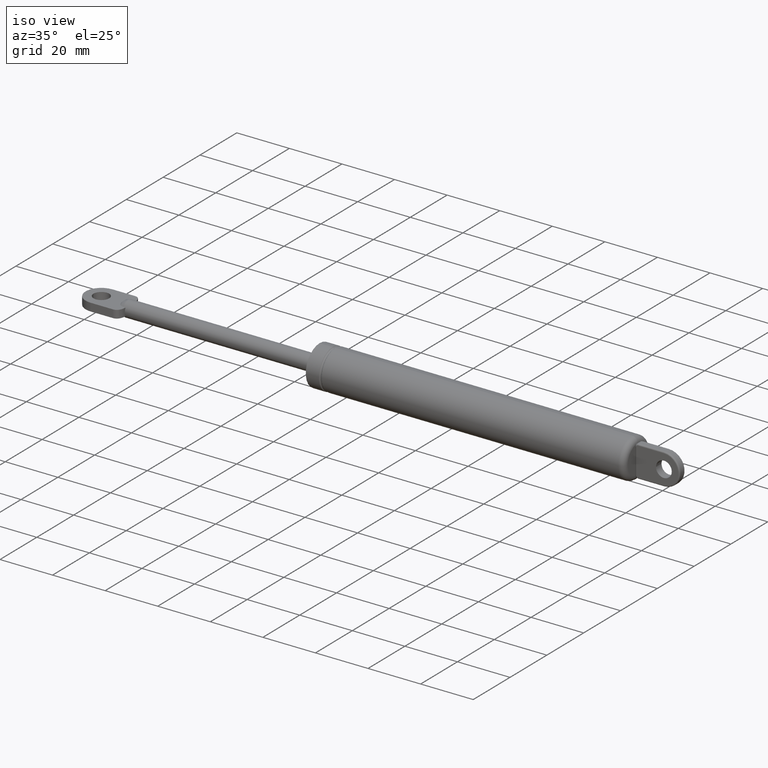
[diagram: clean part render]
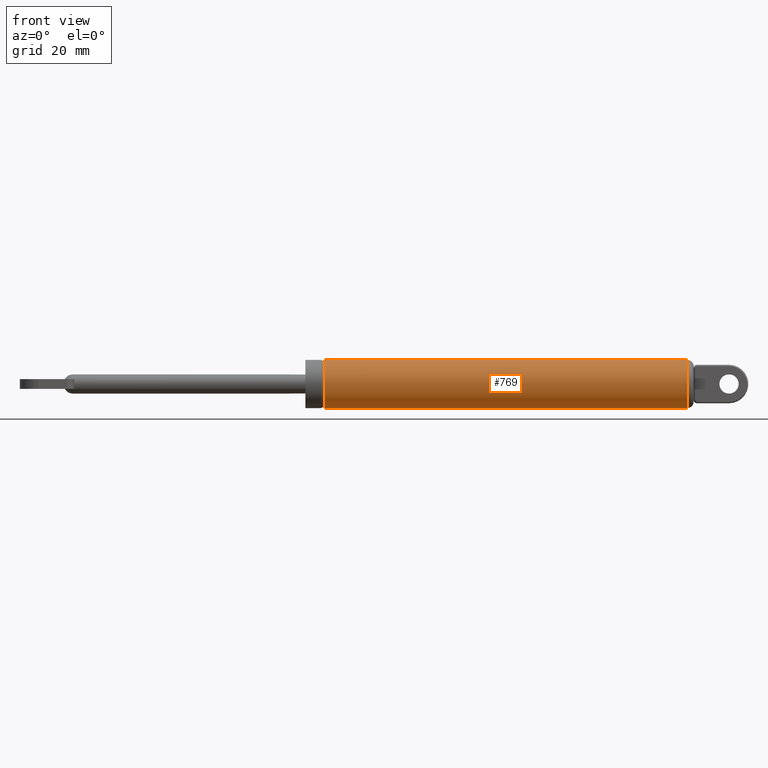
[diagram: tour spotlight — one face highlighted and labeled with its STEP entity id]
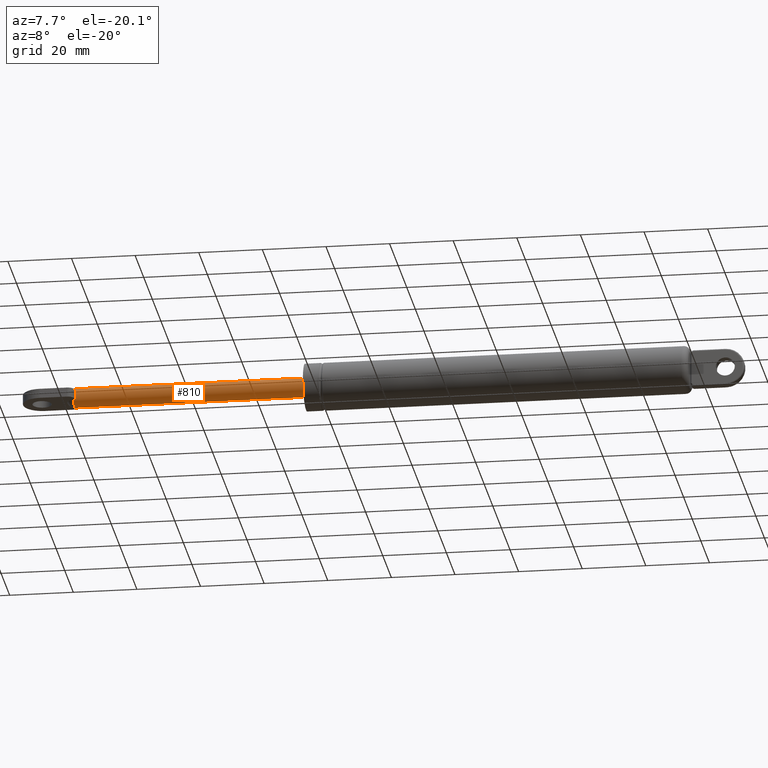
[diagram: tour spotlight — one face highlighted and labeled with its STEP entity id]
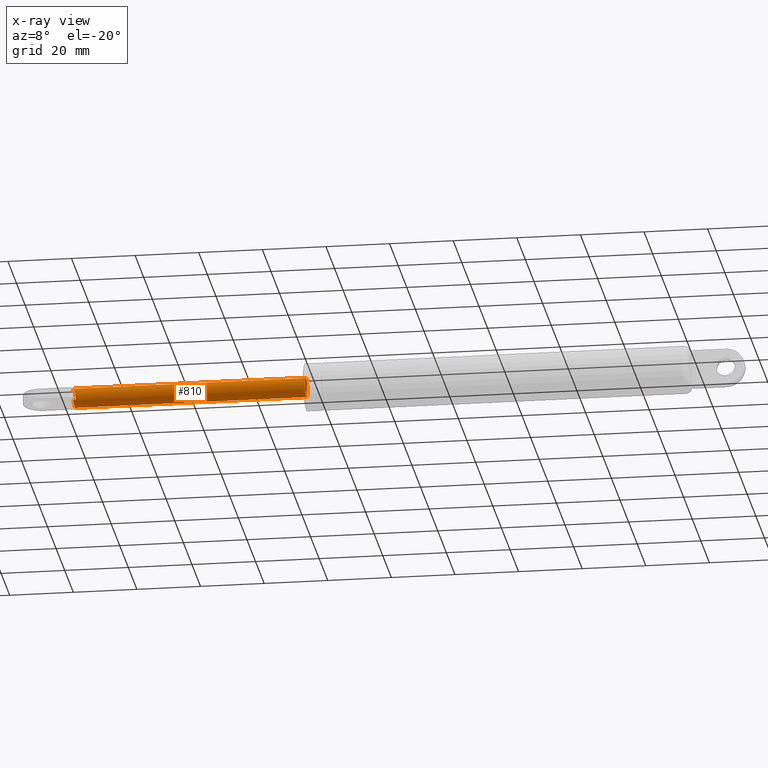
[diagram: x-ray of the same camera — body ghosted, this tour face saturated]
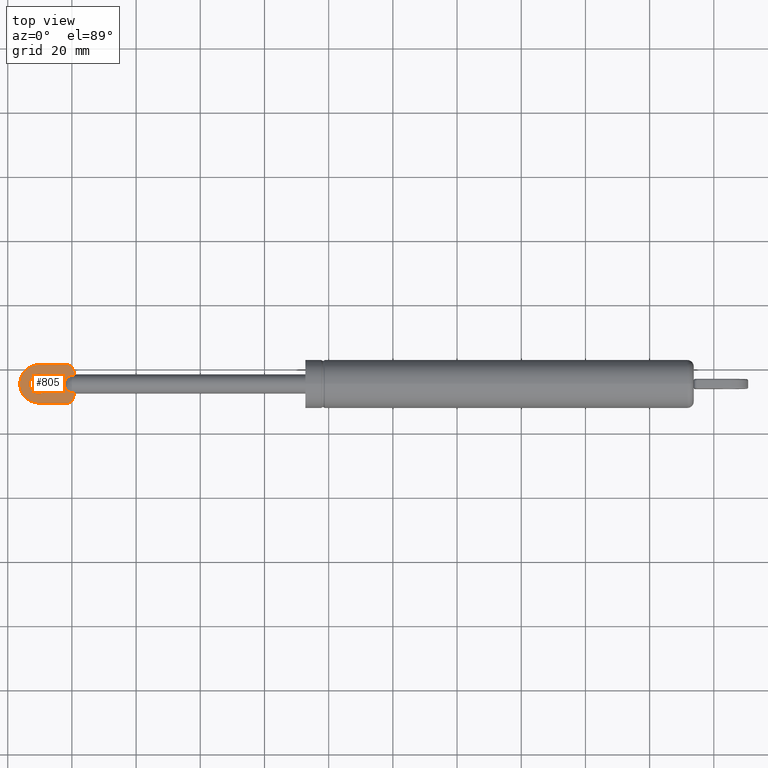
[diagram: tour spotlight — one face highlighted and labeled with its STEP entity id]
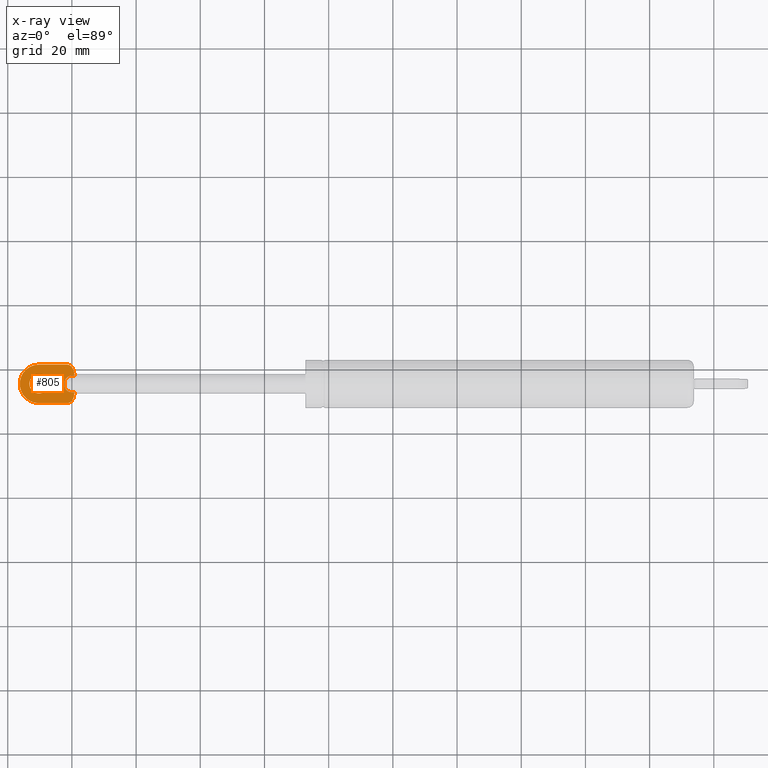
[diagram: x-ray of the same camera — body ghosted, this tour face saturated]
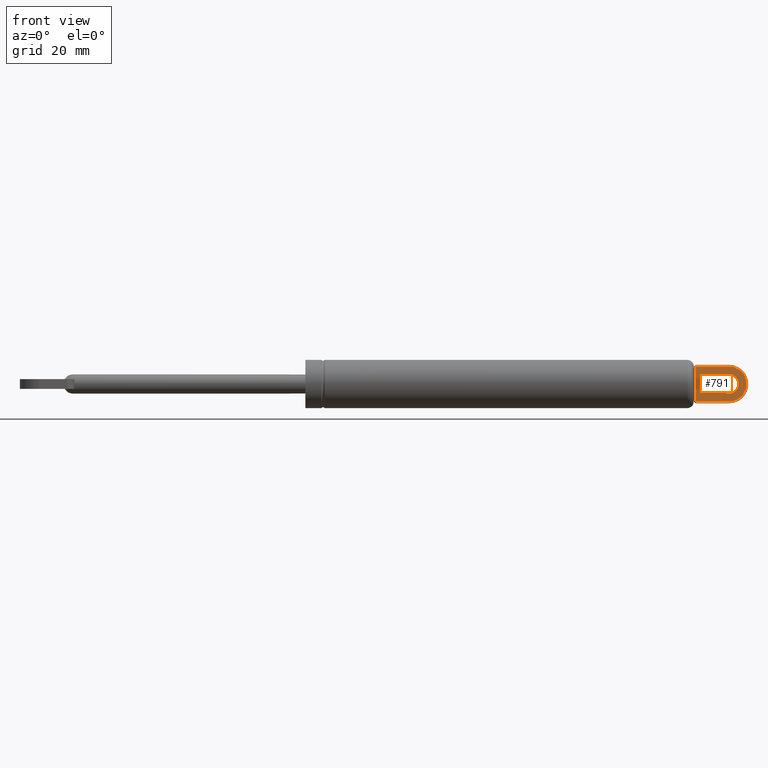
[diagram: tour spotlight — one face highlighted and labeled with its STEP entity id]
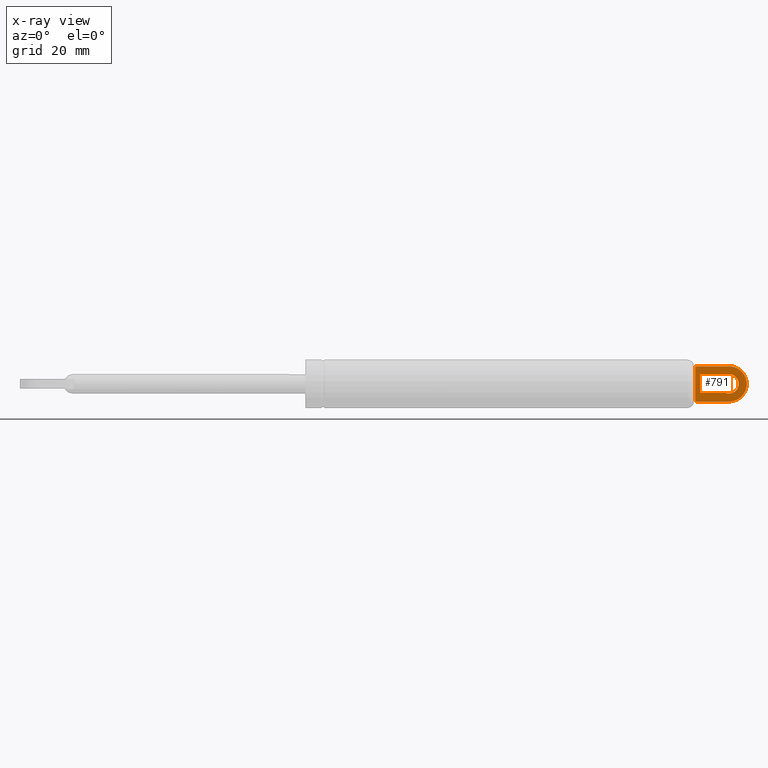
[diagram: x-ray of the same camera — body ghosted, this tour face saturated]
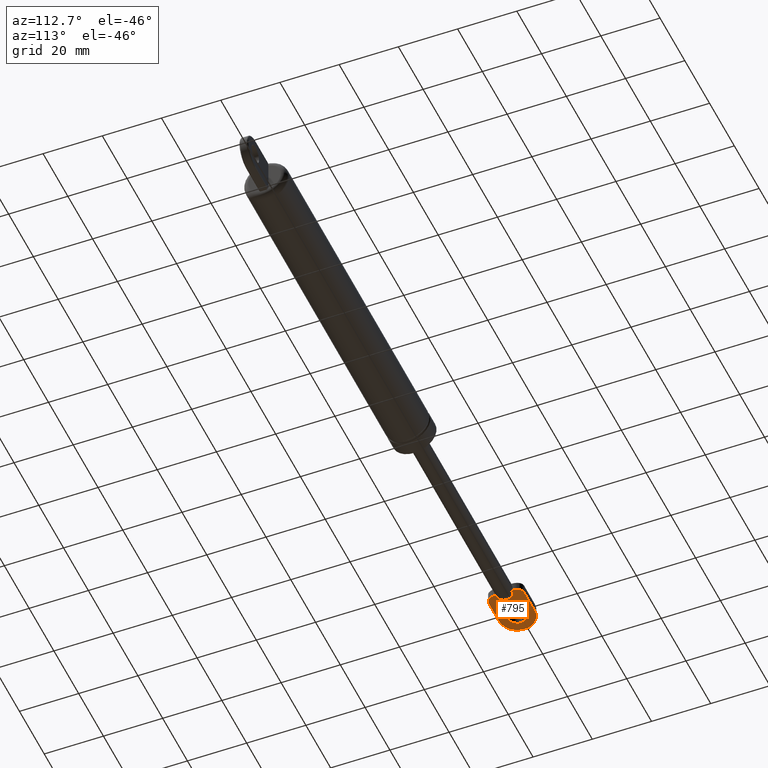
[diagram: tour spotlight — one face highlighted and labeled with its STEP entity id]
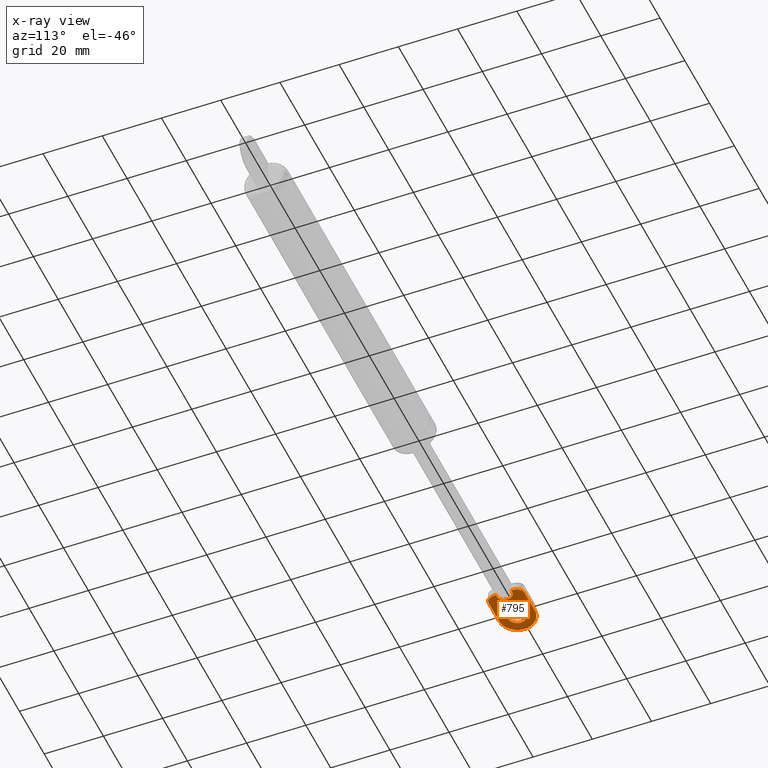
[diagram: x-ray of the same camera — body ghosted, this tour face saturated]
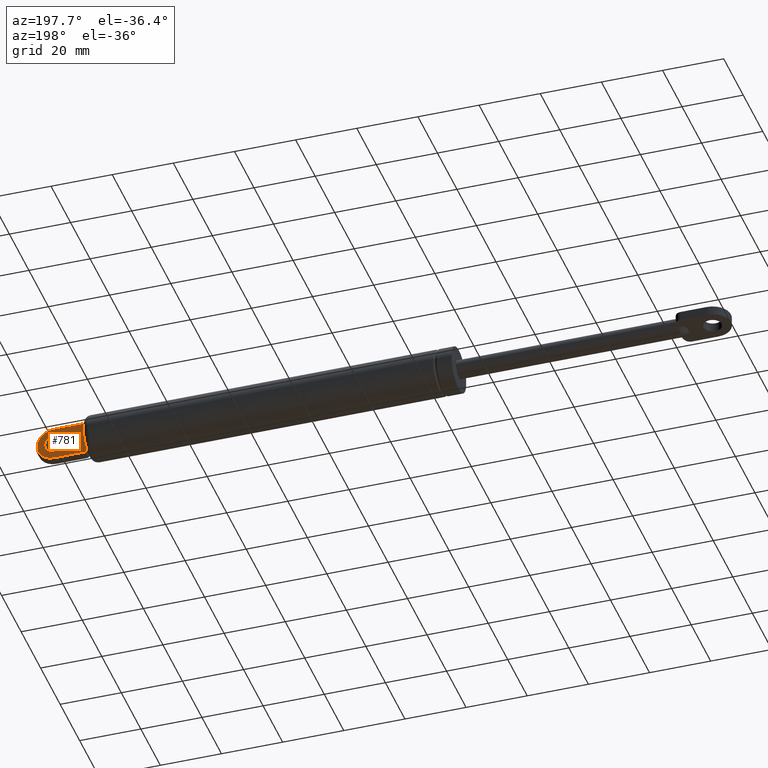
[diagram: tour spotlight — one face highlighted and labeled with its STEP entity id]
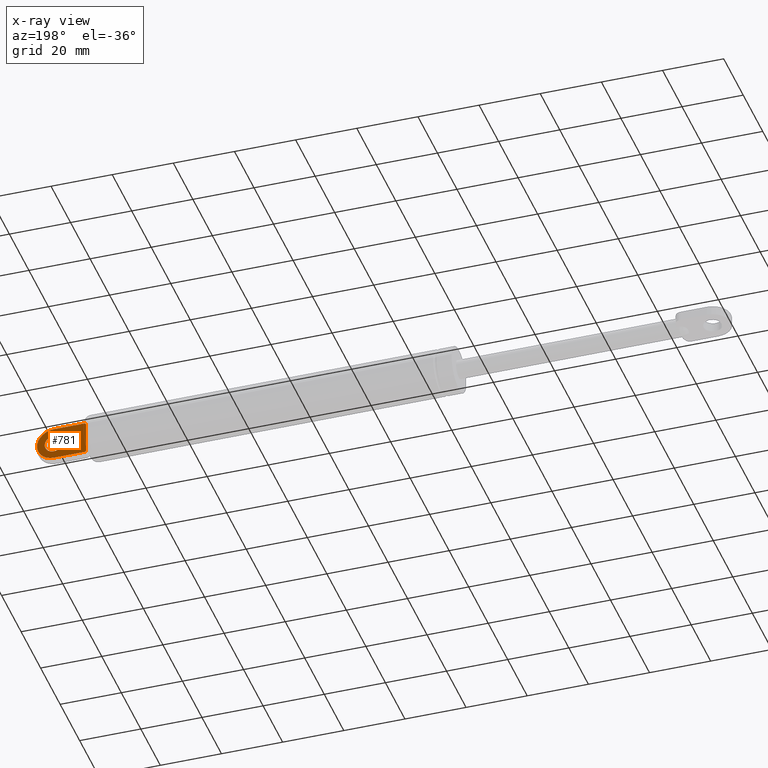
[diagram: x-ray of the same camera — body ghosted, this tour face saturated]
A machine part: a face-by-face anatomy tour. The part has 53 B-rep faces; the first image is the clean iso view, then the 6 largest visible faces are spotlighted one at a time (largest first), each with its STEP entity span.

Face 1 — front view, entity #769. In plain terms, the highlighted cylindrical surface (bore or boss wall) has radius 7.5 mm, axis along (-1, 0, 0).
Definition (entity closure, byte-faithful):
#160=FACE_BOUND('',#244,.T.);
#181=FACE_OUTER_BOUND('',#243,.T.);
#243=EDGE_LOOP('',(#547));
#244=EDGE_LOOP('',(#548));
#301=CIRCLE('',#828,7.50000000000001);
#306=CIRCLE('',#836,7.50000000000001);
#357=VERTEX_POINT('',#1200);
#362=VERTEX_POINT('',#1213);
#429=EDGE_CURVE('',#357,#357,#301,.T.);
#434=EDGE_CURVE('',#362,#362,#306,.T.);
#547=ORIENTED_EDGE('',*,*,#429,.F.);
#548=ORIENTED_EDGE('',*,*,#434,.F.);
#739=CYLINDRICAL_SURFACE('',#838,7.50000000000001);
#769=ADVANCED_FACE('',(#181,#160),#739,.T.);
#828=AXIS2_PLACEMENT_3D('',#1201,#950,#951);
#836=AXIS2_PLACEMENT_3D('',#1214,#966,#967);
#838=AXIS2_PLACEMENT_3D('',#1216,#970,#971);
#950=DIRECTION('center_axis',(-1.,0.,1.23867858119336E-16));
#951=DIRECTION('ref_axis',(1.23867858119336E-16,0.,1.));
#966=DIRECTION('center_axis',(1.,0.,-1.23867858119336E-16));
#967=DIRECTION('ref_axis',(-1.11022302462516E-16,1.22464679914735E-16,-1.));
#970=DIRECTION('center_axis',(-1.,0.,1.23867858119336E-16));
#971=DIRECTION('ref_axis',(1.23867858119336E-16,0.,1.));
#1200=CARTESIAN_POINT('',(5.99999999999999,1.77771309553649E-15,-7.50000000000002));
#1201=CARTESIAN_POINT('Origin',(6.,0.,-7.43207148716013E-16));
#1213=CARTESIAN_POINT('',(119.,-1.83697019872103E-15,7.49999999999999));
#1214=CARTESIAN_POINT('Origin',(119.,0.,-1.47402751162009E-14));
#1216=CARTESIAN_POINT('Origin',(63.5,0.,-7.86560899057781E-15));

Face 2 — auxiliary view, entity #810. An x-ray twin of the same camera follows (body ghosted, this face saturated) — the face is partly hidden behind the body. In plain terms, the highlighted cylindrical surface (bore or boss wall) has radius 3 mm, axis along (-1, -0, 0).
Definition (entity closure, byte-faithful):
#23=B_SPLINE_CURVE_WITH_KNOTS('',3,(#1523,#1524,#1525,#1526,#1527,#1528,
#1529,#1530),.UNSPECIFIED.,.F.,.F.,(4,1,1,1,1,4),(-0.0540383581335251,-0.0363649636453357,
-0.0121182107978899,0.0121285420495559,0.0363752948970017,0.0540963857121514),
 .UNSPECIFIED.);
#25=B_SPLINE_CURVE_WITH_KNOTS('',3,(#1668,#1669,#1670,#1671,#1672,#1673,
#1674,#1675),.UNSPECIFIED.,.F.,.F.,(4,1,1,1,1,4),(-0.0540339774453801,-0.0363721574594421,
-0.0121290015190495,0.0121141544213431,0.0363573103617357,0.054041807362439),
 .UNSPECIFIED.);
#56=LINE('',#1376,#98);
#58=LINE('',#1410,#100);
#69=LINE('',#1698,#111);
#70=LINE('',#1699,#112);
#98=VECTOR('',#1111,0.8349364905389);
#100=VECTOR('',#1113,0.8349364905389);
#111=VECTOR('',#1154,0.8349364905389);
#112=VECTOR('',#1155,0.834936490538905);
#169=FACE_BOUND('',#294,.T.);
#222=FACE_OUTER_BOUND('',#293,.T.);
#293=EDGE_LOOP('',(#724,#725,#726,#727,#728,#729,#730,#731,#732,#733));
#294=EDGE_LOOP('',(#734));
#344=CIRCLE('',#902,3.00000000000001);
#345=CIRCLE('',#904,3.00000000000001);
#346=CIRCLE('',#906,3.00000000000001);
#349=CIRCLE('',#915,3.00000000000001);
#350=CIRCLE('',#917,3.);
#395=VERTEX_POINT('',#1357);
#402=VERTEX_POINT('',#1373);
#403=VERTEX_POINT('',#1375);
#406=VERTEX_POINT('',#1394);
#407=VERTEX_POINT('',#1409);
#412=VERTEX_POINT('',#1423);
#413=VERTEX_POINT('',#1427);
#416=VERTEX_POINT('',#1652);
#417=VERTEX_POINT('',#1667);
#420=VERTEX_POINT('',#1696);
#422=VERTEX_POINT('',#1709);
#494=EDGE_CURVE('',#402,#403,#56,.T.);
#498=EDGE_CURVE('',#406,#407,#58,.T.);
#508=EDGE_CURVE('',#413,#412,#344,.T.);
#509=EDGE_CURVE('',#412,#402,#345,.T.);
#510=EDGE_CURVE('',#407,#395,#346,.T.);
#513=EDGE_CURVE('',#403,#406,#23,.T.);
#515=EDGE_CURVE('',#416,#417,#25,.T.);
#520=EDGE_CURVE('',#420,#416,#69,.T.);
#521=EDGE_CURVE('',#417,#413,#70,.T.);
#525=EDGE_CURVE('',#395,#420,#349,.T.);
#526=EDGE_CURVE('',#422,#422,#350,.T.);
#724=ORIENTED_EDGE('',*,*,#513,.F.);
#725=ORIENTED_EDGE('',*,*,#494,.F.);
#726=ORIENTED_EDGE('',*,*,#509,.F.);
#727=ORIENTED_EDGE('',*,*,#508,.F.);
#728=ORIENTED_EDGE('',*,*,#521,.F.);
#729=ORIENTED_EDGE('',*,*,#515,.F.);
#730=ORIENTED_EDGE('',*,*,#520,.F.);
#731=ORIENTED_EDGE('',*,*,#525,.F.);
#732=ORIENTED_EDGE('',*,*,#510,.F.);
#733=ORIENTED_EDGE('',*,*,#498,.F.);
#734=ORIENTED_EDGE('',*,*,#526,.T.);
#757=CYLINDRICAL_SURFACE('',#918,3.);
#810=ADVANCED_FACE('',(#222,#169),#757,.T.);
#902=AXIS2_PLACEMENT_3D('',#1429,#1132,#1133);
#904=AXIS2_PLACEMENT_3D('',#1431,#1136,#1137);
#906=AXIS2_PLACEMENT_3D('',#1433,#1140,#1141);
#915=AXIS2_PLACEMENT_3D('',#1707,#1166,#1167);
#917=AXIS2_PLACEMENT_3D('',#1710,#1170,#1171);
#918=AXIS2_PLACEMENT_3D('',#1711,#1172,#1173);
#1111=DIRECTION('',(-1.,0.,0.));
#1113=DIRECTION('',(1.,0.,0.));
#1132=DIRECTION('center_axis',(-1.,0.,0.));
#1133=DIRECTION('ref_axis',(0.,0.,1.));
#1136=DIRECTION('center_axis',(-1.,0.,0.));
#1137=DIRECTION('ref_axis',(0.,0.,1.));
#1140=DIRECTION('center_axis',(-1.,0.,0.));
#1141=DIRECTION('ref_axis',(0.,0.,1.));
#1154=DIRECTION('',(-1.,0.,0.));
#1155=DIRECTION('',(1.,0.,0.));
#1166=DIRECTION('center_axis',(-1.,0.,0.));
#1167=DIRECTION('ref_axis',(0.,0.,1.));
#1170=DIRECTION('center_axis',(-1.,0.,0.));
#1171=DIRECTION('ref_axis',(0.,0.,1.));
#1172=DIRECTION('center_axis',(-1.,0.,0.));
#1173=DIRECTION('ref_axis',(0.,0.,1.));
#1357=CARTESIAN_POINT('',(0.,0.,-3.00000000000001));
#1373=CARTESIAN_POINT('',(0.,1.5,2.59807621135332));
#1375=CARTESIAN_POINT('',(-0.8349364905389,1.5,2.59807621135332));
#1376=CARTESIAN_POINT('',(0.,1.5,2.59807621135333));
#1394=CARTESIAN_POINT('',(-0.8349364905389,1.50000000000002,-2.59807621135331));
#1409=CARTESIAN_POINT('',(0.,1.5,-2.59807621135332));
#1410=CARTESIAN_POINT('',(0.,1.5,-2.59807621135333));
#1423=CARTESIAN_POINT('',(0.,0.,3.00000000000001));
#1427=CARTESIAN_POINT('',(0.,-1.5,2.59807621135332));
#1429=CARTESIAN_POINT('Origin',(0.,0.,0.));
#1431=CARTESIAN_POINT('Origin',(0.,0.,0.));
#1433=CARTESIAN_POINT('Origin',(0.,0.,0.));
#1523=CARTESIAN_POINT('Ctrl Pts',(-0.83496296909703,1.49982526992711,2.59776931909322));
#1524=CARTESIAN_POINT('Ctrl Pts',(-0.808481457728395,1.77548765390264,2.43853525479534));
#1525=CARTESIAN_POINT('Ctrl Pts',(-0.753930736047391,2.39110760546371,1.94575758727613));
#1526=CARTESIAN_POINT('Ctrl Pts',(-0.70651358265062,3.02917642674684,0.75766980171822));
#1527=CARTESIAN_POINT('Ctrl Pts',(-0.706540066146331,3.02867178525314,-0.755668449945182));
#1528=CARTESIAN_POINT('Ctrl Pts',(-0.753569712255887,2.39442029901889,-1.9423550495411));
#1529=CARTESIAN_POINT('Ctrl Pts',(-0.80836277386856,1.77665333904333,-2.43775292165401));
#1530=CARTESIAN_POINT('Ctrl Pts',(-0.834959397544464,1.49986326182888,-2.5978359756072));
#1652=CARTESIAN_POINT('',(-0.8349364905389,-1.5,-2.59807621135332));
#1667=CARTESIAN_POINT('',(-0.834936490538905,-1.5,2.59807621135332));
#1668=CARTESIAN_POINT('Ctrl Pts',(-0.834963193699952,-1.49989092503882,
-2.59788284931041));
#1669=CARTESIAN_POINT('Ctrl Pts',(-0.808497956849982,-1.77523297517459,
-2.43890837609691));
#1670=CARTESIAN_POINT('Ctrl Pts',(-0.753908067428951,-2.3904867172505,-1.94672799018682));
#1671=CARTESIAN_POINT('Ctrl Pts',(-0.706628477442196,-3.02673005416493,
-0.759171410230855));
#1672=CARTESIAN_POINT('Ctrl Pts',(-0.706499083681106,-3.0296097004443,0.757073935760143));
#1673=CARTESIAN_POINT('Ctrl Pts',(-0.754003123055967,-2.38947846264433,
1.94631723191615));
#1674=CARTESIAN_POINT('Ctrl Pts',(-0.808481652627919,-1.77536711114341,
2.43866991494797));
#1675=CARTESIAN_POINT('Ctrl Pts',(-0.834964863882417,-1.49986674167264,
2.59784084088317));
#1696=CARTESIAN_POINT('',(0.,-1.5,-2.59807621135332));
#1698=CARTESIAN_POINT('',(0.,-1.5,-2.59807621135333));
#1699=CARTESIAN_POINT('',(0.,-1.5,2.59807621135333));
#1707=CARTESIAN_POINT('Origin',(0.,0.,0.));
#1709=CARTESIAN_POINT('',(72.,0.,3.));
#1710=CARTESIAN_POINT('Origin',(72.,0.,0.));
#1711=CARTESIAN_POINT('Origin',(36.,0.,0.));

Face 3 — top view, entity #805. An x-ray twin of the same camera follows (body ghosted, this face saturated) — the face is partly hidden behind the body. In plain terms, the highlighted planar face has unit normal (0, -0, 1).
Definition (entity closure, byte-faithful):
#24=B_SPLINE_CURVE_WITH_KNOTS('',3,(#1653,#1654,#1655,#1656,#1657,#1658,
#1659,#1660,#1661,#1662,#1663,#1664,#1665,#1666),.UNSPECIFIED.,.F.,.F.,
(4,2,2,2,2,2,4),(0.,0.0882895990108513,0.174187522949891,0.251913736880269,
0.292694329658104,0.33534186839813,0.336083167071855),.UNSPECIFIED.);
#26=B_SPLINE_CURVE_WITH_KNOTS('',3,(#1677,#1678,#1679,#1680,#1681,#1682,
#1683,#1684,#1685,#1686,#1687,#1688,#1689,#1690),.UNSPECIFIED.,.F.,.F.,
(4,2,2,2,2,2,4),(-0.000739769988527966,0.,0.042554424329177,0.0832484773917246,
0.160809137241158,0.246522977485883,0.334623190007731),.UNSPECIFIED.);
#64=LINE('',#1428,#106);
#65=LINE('',#1436,#107);
#67=LINE('',#1691,#109);
#68=LINE('',#1697,#110);
#69=LINE('',#1698,#111);
#70=LINE('',#1699,#112);
#71=LINE('',#1701,#113);
#106=VECTOR('',#1131,0.401923788646689);
#107=VECTOR('',#1144,8.68614066163451);
#109=VECTOR('',#1146,1.00000000000001);
#110=VECTOR('',#1153,0.401923788646688);
#111=VECTOR('',#1154,0.8349364905389);
#112=VECTOR('',#1155,0.834936490538905);
#113=VECTOR('',#1156,8.68614066163451);
#140=PLANE('',#910);
#168=FACE_BOUND('',#288,.T.);
#217=FACE_OUTER_BOUND('',#287,.T.);
#287=EDGE_LOOP('',(#697,#698,#699,#700,#701,#702,#703,#704,#705,#706,#707,
#708,#709,#710));
#288=EDGE_LOOP('',(#711));
#334=CIRCLE('',#887,2.);
#337=CIRCLE('',#891,3.74999999999998);
#342=CIRCLE('',#898,2.);
#343=CIRCLE('',#900,3.74999999999999);
#347=CIRCLE('',#909,3.);
#348=CIRCLE('',#911,6.);
#390=VERTEX_POINT('',#1346);
#391=VERTEX_POINT('',#1347);
#396=VERTEX_POINT('',#1359);
#409=VERTEX_POINT('',#1415);
#410=VERTEX_POINT('',#1417);
#411=VERTEX_POINT('',#1421);
#413=VERTEX_POINT('',#1427);
#414=VERTEX_POINT('',#1435);
#415=VERTEX_POINT('',#1651);
#416=VERTEX_POINT('',#1652);
#417=VERTEX_POINT('',#1667);
#418=VERTEX_POINT('',#1676);
#419=VERTEX_POINT('',#1693);
#420=VERTEX_POINT('',#1696);
#421=VERTEX_POINT('',#1700);
#480=EDGE_CURVE('',#390,#391,#334,.T.);
#487=EDGE_CURVE('',#390,#396,#337,.T.);
#502=EDGE_CURVE('',#409,#410,#342,.T.);
#504=EDGE_CURVE('',#411,#410,#343,.T.);
#507=EDGE_CURVE('',#413,#411,#64,.T.);
#511=EDGE_CURVE('',#414,#391,#65,.T.);
#514=EDGE_CURVE('',#415,#416,#24,.F.);
#516=EDGE_CURVE('',#418,#417,#26,.T.);
#517=EDGE_CURVE('',#415,#418,#67,.T.);
#518=EDGE_CURVE('',#419,#419,#347,.T.);
#519=EDGE_CURVE('',#396,#420,#68,.T.);
#520=EDGE_CURVE('',#420,#416,#69,.T.);
#521=EDGE_CURVE('',#417,#413,#70,.T.);
#522=EDGE_CURVE('',#409,#421,#71,.T.);
#523=EDGE_CURVE('',#421,#414,#348,.T.);
#697=ORIENTED_EDGE('',*,*,#480,.F.);
#698=ORIENTED_EDGE('',*,*,#487,.T.);
#699=ORIENTED_EDGE('',*,*,#519,.T.);
#700=ORIENTED_EDGE('',*,*,#520,.T.);
#701=ORIENTED_EDGE('',*,*,#514,.F.);
#702=ORIENTED_EDGE('',*,*,#517,.T.);
#703=ORIENTED_EDGE('',*,*,#516,.T.);
#704=ORIENTED_EDGE('',*,*,#521,.T.);
#705=ORIENTED_EDGE('',*,*,#507,.T.);
#706=ORIENTED_EDGE('',*,*,#504,.T.);
#707=ORIENTED_EDGE('',*,*,#502,.F.);
#708=ORIENTED_EDGE('',*,*,#522,.T.);
#709=ORIENTED_EDGE('',*,*,#523,.T.);
#710=ORIENTED_EDGE('',*,*,#511,.T.);
#711=ORIENTED_EDGE('',*,*,#518,.T.);
#805=ADVANCED_FACE('',(#217,#168),#140,.T.);
#887=AXIS2_PLACEMENT_3D('',#1348,#1086,#1087);
#891=AXIS2_PLACEMENT_3D('',#1361,#1098,#1099);
#898=AXIS2_PLACEMENT_3D('',#1418,#1120,#1121);
#900=AXIS2_PLACEMENT_3D('',#1422,#1125,#1126);
#909=AXIS2_PLACEMENT_3D('',#1694,#1149,#1150);
#910=AXIS2_PLACEMENT_3D('',#1695,#1151,#1152);
#911=AXIS2_PLACEMENT_3D('',#1702,#1157,#1158);
#1086=DIRECTION('center_axis',(-7.40148683083438E-17,1.,0.));
#1087=DIRECTION('ref_axis',(0.462910049886275,0.,-0.886405260427919));
#1098=DIRECTION('center_axis',(7.40148683083438E-17,-1.,0.));
#1099=DIRECTION('ref_axis',(-1.,0.,1.48029736616688E-16));
#1120=DIRECTION('center_axis',(-7.40148683083438E-17,1.,0.));
#1121=DIRECTION('ref_axis',(0.462910049886275,0.,0.886405260427919));
#1125=DIRECTION('center_axis',(7.40148683083438E-17,-1.,0.));
#1126=DIRECTION('ref_axis',(-0.599999999999998,0.,-0.800000000000001));
#1131=DIRECTION('',(0.,0.,1.));
#1144=DIRECTION('',(1.,0.,-2.01858731750028E-16));
#1146=DIRECTION('',(0.,0.,1.));
#1149=DIRECTION('center_axis',(-7.40148683083438E-17,1.,0.));
#1150=DIRECTION('ref_axis',(1.,0.,0.));
#1151=DIRECTION('center_axis',(7.40148683083438E-17,-1.,0.));
#1152=DIRECTION('ref_axis',(0.,0.,-1.));
#1153=DIRECTION('',(0.,0.,1.));
#1154=DIRECTION('',(-1.,0.,0.));
#1155=DIRECTION('',(1.,0.,0.));
#1156=DIRECTION('',(-1.,0.,-2.01858731750028E-16));
#1157=DIRECTION('center_axis',(0.,-1.,0.));
#1158=DIRECTION('ref_axis',(-1.,0.,0.));
#1346=CARTESIAN_POINT('',(-0.672555725068914,-1.5,-5.14285714285715));
#1347=CARTESIAN_POINT('',(-2.31385933836549,-1.5,-6.));
#1348=CARTESIAN_POINT('Origin',(-2.31385933836549,-1.5,-4.));
#1359=CARTESIAN_POINT('',(0.,-1.5,-3.00000000000001));
#1361=CARTESIAN_POINT('Origin',(-3.74999999999998,-1.5,-3.00000000000001));
#1415=CARTESIAN_POINT('',(-2.31385933836549,-1.5,6.));
#1417=CARTESIAN_POINT('',(-0.672555725068913,-1.5,5.14285714285715));
#1418=CARTESIAN_POINT('Origin',(-2.31385933836549,-1.5,4.));
#1421=CARTESIAN_POINT('',(0.,-1.5,3.00000000000001));
#1422=CARTESIAN_POINT('Origin',(-3.74999999999999,-1.5,3.00000000000001));
#1427=CARTESIAN_POINT('',(0.,-1.5,2.59807621135332));
#1428=CARTESIAN_POINT('',(0.,-1.5,6.));
#1435=CARTESIAN_POINT('',(-11.,-1.5,-6.));
#1436=CARTESIAN_POINT('',(0.,-1.5,-6.));
#1651=CARTESIAN_POINT('',(-3.,-1.5,-0.500000000000005));
#1652=CARTESIAN_POINT('',(-0.8349364905389,-1.5,-2.59807621135332));
#1653=CARTESIAN_POINT('Ctrl Pts',(-0.834936490538905,-1.5,-2.59807621135332));
#1654=CARTESIAN_POINT('Ctrl Pts',(-1.12923515390841,-1.5,-2.59807621135332));
#1655=CARTESIAN_POINT('Ctrl Pts',(-1.42053381542658,-1.5,-2.54047011705127));
#1656=CARTESIAN_POINT('Ctrl Pts',(-1.95588850213927,-1.5,-2.31674123552878));
#1657=CARTESIAN_POINT('Ctrl Pts',(-2.19565636998262,-1.49999999999969,-2.15578379058619));
#1658=CARTESIAN_POINT('Ctrl Pts',(-2.57842958329301,-1.49999999999969,-1.76826651925985));
#1659=CARTESIAN_POINT('Ctrl Pts',(-2.72523634170566,-1.5,-1.55262319393313));
#1660=CARTESIAN_POINT('Ctrl Pts',(-2.88295289515837,-1.5,-1.19126644630143));
#1661=CARTESIAN_POINT('Ctrl Pts',(-2.92490913224033,-1.50000000000019,-1.06188229235047));
#1662=CARTESIAN_POINT('Ctrl Pts',(-2.98385564274791,-1.50000000000019,-0.790675373669051));
#1663=CARTESIAN_POINT('Ctrl Pts',(-2.9994617725059,-1.5,-0.649249936289638));
#1664=CARTESIAN_POINT('Ctrl Pts',(-2.99999544024132,-1.5,-0.504931398844833));
#1665=CARTESIAN_POINT('Ctrl Pts',(-3.,-1.5,-0.50246570035575));
#1666=CARTESIAN_POINT('Ctrl Pts',(-3.,-1.5,-0.500000000000005));
#1667=CARTESIAN_POINT('',(-0.834936490538905,-1.5,2.59807621135332));
#1676=CARTESIAN_POINT('',(-3.,-1.5,0.500000000000005));
#1677=CARTESIAN_POINT('Ctrl Pts',(-3.,-1.5,0.500000000000005));
#1678=CARTESIAN_POINT('Ctrl Pts',(-3.,-1.5,0.502465899961765));
#1679=CARTESIAN_POINT('Ctrl Pts',(-2.99999543950304,-1.5,0.504931798056233));
#1680=CARTESIAN_POINT('Ctrl Pts',(-2.99946174907324,-1.5,0.64924479228623));
#1681=CARTESIAN_POINT('Ctrl Pts',(-2.98385681936935,-1.50000000000678,0.790664532571742));
#1682=CARTESIAN_POINT('Ctrl Pts',(-2.92491313067494,-1.50000000000678,1.06186908559503));
#1683=CARTESIAN_POINT('Ctrl Pts',(-2.88295678551073,-1.5,1.19125620876994));
#1684=CARTESIAN_POINT('Ctrl Pts',(-2.72523916277677,-1.5,1.55261925379073));
#1685=CARTESIAN_POINT('Ctrl Pts',(-2.57843077296316,-1.49999999999969,1.76826564510859));
#1686=CARTESIAN_POINT('Ctrl Pts',(-2.19565486122154,-1.49999999999969,2.15578495306328));
#1687=CARTESIAN_POINT('Ctrl Pts',(-1.95588687585746,-1.5,2.31674217527474));
#1688=CARTESIAN_POINT('Ctrl Pts',(-1.42053259517507,-1.5,2.54047035965023));
#1689=CARTESIAN_POINT('Ctrl Pts',(-1.1292345342116,-1.5,2.59807621135332));
#1690=CARTESIAN_POINT('Ctrl Pts',(-0.834936490538904,-1.5,2.59807621135332));
#1691=CARTESIAN_POINT('',(-3.,-1.5,-1.01064294310061E-16));
#1693=CARTESIAN_POINT('',(-14.,-1.5,-7.42828984880951E-16));
#1694=CARTESIAN_POINT('Origin',(-11.,-1.5,-1.11022302462516E-15));
#1695=CARTESIAN_POINT('Origin',(-6.86598080559464,-1.5,0.));
#1696=CARTESIAN_POINT('',(0.,-1.5,-2.59807621135332));
#1697=CARTESIAN_POINT('',(0.,-1.5,6.));
#1698=CARTESIAN_POINT('',(0.,-1.5,-2.59807621135333));
#1699=CARTESIAN_POINT('',(0.,-1.5,2.59807621135333));
#1700=CARTESIAN_POINT('',(-11.,-1.5,6.));
#1701=CARTESIAN_POINT('',(-11.,-1.5,6.));
#1702=CARTESIAN_POINT('Origin',(-11.,-1.5,1.11022302462516E-15));

Face 4 — front view, entity #791. An x-ray twin of the same camera follows (body ghosted, this face saturated) — the face is partly hidden behind the body. In plain terms, the highlighted planar face has unit normal (0, -1, 0).
Definition (entity closure, byte-faithful):
#43=LINE('',#1297,#85);
#44=LINE('',#1315,#86);
#46=LINE('',#1332,#88);
#85=VECTOR('',#1042,10.);
#86=VECTOR('',#1053,10.);
#88=VECTOR('',#1063,10.);
#134=PLANE('',#882);
#164=FACE_BOUND('',#270,.T.);
#203=FACE_OUTER_BOUND('',#269,.T.);
#269=EDGE_LOOP('',(#632,#633,#634,#635,#636,#637));
#270=EDGE_LOOP('',(#638));
#326=CIRCLE('',#869,0.5);
#330=CIRCLE('',#874,0.5);
#332=CIRCLE('',#878,5.5);
#333=CIRCLE('',#883,3.);
#381=VERTEX_POINT('',#1291);
#383=VERTEX_POINT('',#1295);
#385=VERTEX_POINT('',#1308);
#386=VERTEX_POINT('',#1313);
#387=VERTEX_POINT('',#1326);
#388=VERTEX_POINT('',#1330);
#389=VERTEX_POINT('',#1341);
#465=EDGE_CURVE('',#383,#381,#43,.T.);
#467=EDGE_CURVE('',#385,#383,#326,.T.);
#470=EDGE_CURVE('',#386,#385,#44,.T.);
#473=EDGE_CURVE('',#387,#386,#330,.T.);
#475=EDGE_CURVE('',#388,#387,#46,.T.);
#476=EDGE_CURVE('',#381,#388,#332,.T.);
#479=EDGE_CURVE('',#389,#389,#333,.T.);
#632=ORIENTED_EDGE('',*,*,#465,.F.);
#633=ORIENTED_EDGE('',*,*,#467,.F.);
#634=ORIENTED_EDGE('',*,*,#470,.F.);
#635=ORIENTED_EDGE('',*,*,#473,.F.);
#636=ORIENTED_EDGE('',*,*,#475,.F.);
#637=ORIENTED_EDGE('',*,*,#476,.F.);
#638=ORIENTED_EDGE('',*,*,#479,.T.);
#791=ADVANCED_FACE('',(#203,#164),#134,.T.);
#869=AXIS2_PLACEMENT_3D('',#1310,#1045,#1046);
#874=AXIS2_PLACEMENT_3D('',#1328,#1057,#1058);
#878=AXIS2_PLACEMENT_3D('',#1334,#1066,#1067);
#882=AXIS2_PLACEMENT_3D('',#1340,#1076,#1077);
#883=AXIS2_PLACEMENT_3D('',#1342,#1078,#1079);
#1042=DIRECTION('',(1.,0.,-3.02788097625043E-16));
#1045=DIRECTION('center_axis',(0.,1.,0.));
#1046=DIRECTION('ref_axis',(-0.707106781186547,0.,0.707106781186548));
#1053=DIRECTION('',(0.,0.,1.));
#1057=DIRECTION('center_axis',(0.,1.,0.));
#1058=DIRECTION('ref_axis',(-0.707106781186547,0.,-0.707106781186548));
#1063=DIRECTION('',(-1.,0.,-3.02788097625043E-16));
#1066=DIRECTION('center_axis',(0.,1.,0.));
#1067=DIRECTION('ref_axis',(1.,0.,2.92697095015429E-16));
#1076=DIRECTION('center_axis',(0.,-1.,0.));
#1077=DIRECTION('ref_axis',(0.,0.,-1.));
#1078=DIRECTION('center_axis',(0.,1.,0.));
#1079=DIRECTION('ref_axis',(1.,0.,0.));
#1291=CARTESIAN_POINT('',(132.,-1.5,5.49999999999998));
#1295=CARTESIAN_POINT('',(122.,-1.5,5.49999999999998));
#1297=CARTESIAN_POINT('',(124.432990402797,-1.5,5.49999999999998));
#1308=CARTESIAN_POINT('',(121.5,-1.5,4.99999999999998));
#1310=CARTESIAN_POINT('Origin',(122.,-1.5,4.99999999999998));
#1313=CARTESIAN_POINT('',(121.5,-1.5,-5.00000000000002));
#1315=CARTESIAN_POINT('',(121.5,-1.5,-3.00000000000002));
#1326=CARTESIAN_POINT('',(122.,-1.5,-5.50000000000002));
#1328=CARTESIAN_POINT('Origin',(122.,-1.5,-5.00000000000002));
#1330=CARTESIAN_POINT('',(132.,-1.5,-5.50000000000001));
#1332=CARTESIAN_POINT('',(129.932990402797,-1.5,-5.50000000000001));
#1334=CARTESIAN_POINT('Origin',(132.,-1.5,-1.71605270367666E-14));
#1340=CARTESIAN_POINT('Origin',(127.865980805595,-1.5,-1.58101926586355E-14));
#1341=CARTESIAN_POINT('',(129.,-1.5,-1.35583236129936E-14));
#1342=CARTESIAN_POINT('Origin',(132.,-1.5,-1.39257176527378E-14));

Face 5 — auxiliary view, entity #795. An x-ray twin of the same camera follows (body ghosted, this face saturated) — the face is partly hidden behind the body. In plain terms, the highlighted planar face has unit normal (0, -0, 1).
Definition (entity closure, byte-faithful):
#21=B_SPLINE_CURVE_WITH_KNOTS('',3,(#1378,#1379,#1380,#1381,#1382,#1383,
#1384,#1385,#1386,#1387,#1388,#1389,#1390,#1391),.UNSPECIFIED.,.F.,.F.,
(4,2,2,2,2,2,4),(0.,0.0882895993586583,0.174187521889553,0.251913664591855,
0.29269427990099,0.335341929828864,0.336083166663158),.UNSPECIFIED.);
#22=B_SPLINE_CURVE_WITH_KNOTS('',3,(#1395,#1396,#1397,#1398,#1399,#1400,
#1401,#1402,#1403,#1404,#1405,#1406,#1407,#1408),.UNSPECIFIED.,.F.,.F.,
(4,2,2,2,2,2,4),(-0.000738185742638544,0.,0.0425641388883004,0.0832623047865057,
0.160809919149743,0.246524066090689,0.334624732844617),.UNSPECIFIED.);
#53=LINE('',#1364,#95);
#54=LINE('',#1368,#96);
#55=LINE('',#1374,#97);
#56=LINE('',#1376,#98);
#57=LINE('',#1393,#99);
#58=LINE('',#1410,#100);
#59=LINE('',#1411,#101);
#95=VECTOR('',#1102,8.68614066163451);
#96=VECTOR('',#1105,8.68614066163451);
#97=VECTOR('',#1110,0.401923788646689);
#98=VECTOR('',#1111,0.8349364905389);
#99=VECTOR('',#1112,1.00000000000001);
#100=VECTOR('',#1113,0.8349364905389);
#101=VECTOR('',#1114,0.401923788646688);
#135=PLANE('',#892);
#166=FACE_BOUND('',#276,.T.);
#207=FACE_OUTER_BOUND('',#275,.T.);
#275=EDGE_LOOP('',(#650,#651,#652,#653,#654,#655,#656,#657,#658,#659,#660,
#661,#662,#663));
#276=EDGE_LOOP('',(#664));
#335=CIRCLE('',#888,2.);
#336=CIRCLE('',#890,3.74999999999998);
#338=CIRCLE('',#893,6.);
#339=CIRCLE('',#894,2.);
#340=CIRCLE('',#895,3.74999999999999);
#341=CIRCLE('',#896,3.);
#392=VERTEX_POINT('',#1349);
#393=VERTEX_POINT('',#1351);
#394=VERTEX_POINT('',#1355);
#397=VERTEX_POINT('',#1363);
#398=VERTEX_POINT('',#1365);
#399=VERTEX_POINT('',#1367);
#400=VERTEX_POINT('',#1369);
#401=VERTEX_POINT('',#1371);
#402=VERTEX_POINT('',#1373);
#403=VERTEX_POINT('',#1375);
#404=VERTEX_POINT('',#1377);
#405=VERTEX_POINT('',#1392);
#406=VERTEX_POINT('',#1394);
#407=VERTEX_POINT('',#1409);
#408=VERTEX_POINT('',#1412);
#482=EDGE_CURVE('',#392,#393,#335,.T.);
#484=EDGE_CURVE('',#394,#393,#336,.T.);
#488=EDGE_CURVE('',#392,#397,#53,.T.);
#489=EDGE_CURVE('',#397,#398,#338,.T.);
#490=EDGE_CURVE('',#398,#399,#54,.T.);
#491=EDGE_CURVE('',#400,#399,#339,.T.);
#492=EDGE_CURVE('',#400,#401,#340,.T.);
#493=EDGE_CURVE('',#401,#402,#55,.T.);
#494=EDGE_CURVE('',#402,#403,#56,.T.);
#495=EDGE_CURVE('',#404,#403,#21,.F.);
#496=EDGE_CURVE('',#404,#405,#57,.T.);
#497=EDGE_CURVE('',#405,#406,#22,.T.);
#498=EDGE_CURVE('',#406,#407,#58,.T.);
#499=EDGE_CURVE('',#407,#394,#59,.T.);
#500=EDGE_CURVE('',#408,#408,#341,.T.);
#650=ORIENTED_EDGE('',*,*,#482,.F.);
#651=ORIENTED_EDGE('',*,*,#488,.T.);
#652=ORIENTED_EDGE('',*,*,#489,.T.);
#653=ORIENTED_EDGE('',*,*,#490,.T.);
#654=ORIENTED_EDGE('',*,*,#491,.F.);
#655=ORIENTED_EDGE('',*,*,#492,.T.);
#656=ORIENTED_EDGE('',*,*,#493,.T.);
#657=ORIENTED_EDGE('',*,*,#494,.T.);
#658=ORIENTED_EDGE('',*,*,#495,.F.);
#659=ORIENTED_EDGE('',*,*,#496,.T.);
#660=ORIENTED_EDGE('',*,*,#497,.T.);
#661=ORIENTED_EDGE('',*,*,#498,.T.);
#662=ORIENTED_EDGE('',*,*,#499,.T.);
#663=ORIENTED_EDGE('',*,*,#484,.T.);
#664=ORIENTED_EDGE('',*,*,#500,.T.);
#795=ADVANCED_FACE('',(#207,#166),#135,.F.);
#888=AXIS2_PLACEMENT_3D('',#1352,#1089,#1090);
#890=AXIS2_PLACEMENT_3D('',#1356,#1094,#1095);
#892=AXIS2_PLACEMENT_3D('',#1362,#1100,#1101);
#893=AXIS2_PLACEMENT_3D('',#1366,#1103,#1104);
#894=AXIS2_PLACEMENT_3D('',#1370,#1106,#1107);
#895=AXIS2_PLACEMENT_3D('',#1372,#1108,#1109);
#896=AXIS2_PLACEMENT_3D('',#1413,#1115,#1116);
#1089=DIRECTION('center_axis',(7.40148683083438E-17,-1.,0.));
#1090=DIRECTION('ref_axis',(0.462910049886275,0.,-0.886405260427919));
#1094=DIRECTION('center_axis',(-7.40148683083438E-17,1.,0.));
#1095=DIRECTION('ref_axis',(-1.,0.,1.48029736616688E-16));
#1100=DIRECTION('center_axis',(7.40148683083438E-17,-1.,0.));
#1101=DIRECTION('ref_axis',(0.,0.,-1.));
#1102=DIRECTION('',(-1.,0.,2.01858731750028E-16));
#1103=DIRECTION('center_axis',(0.,1.,0.));
#1104=DIRECTION('ref_axis',(0.,0.,-1.));
#1105=DIRECTION('',(1.,0.,2.01858731750028E-16));
#1106=DIRECTION('center_axis',(7.40148683083438E-17,-1.,0.));
#1107=DIRECTION('ref_axis',(0.462910049886275,0.,0.886405260427919));
#1108=DIRECTION('center_axis',(-7.40148683083438E-17,1.,0.));
#1109=DIRECTION('ref_axis',(-0.599999999999998,0.,-0.800000000000001));
#1110=DIRECTION('',(0.,0.,-1.));
#1111=DIRECTION('',(-1.,0.,0.));
#1112=DIRECTION('',(0.,0.,-1.));
#1113=DIRECTION('',(1.,0.,0.));
#1114=DIRECTION('',(0.,0.,-1.));
#1115=DIRECTION('center_axis',(7.40148683083438E-17,-1.,0.));
#1116=DIRECTION('ref_axis',(1.,0.,0.));
#1349=CARTESIAN_POINT('',(-2.31385933836549,1.5,-6.));
#1351=CARTESIAN_POINT('',(-0.672555725068914,1.5,-5.14285714285715));
#1352=CARTESIAN_POINT('Origin',(-2.31385933836549,1.5,-4.));
#1355=CARTESIAN_POINT('',(0.,1.5,-3.00000000000001));
#1356=CARTESIAN_POINT('Origin',(-3.74999999999998,1.5,-3.00000000000001));
#1362=CARTESIAN_POINT('Origin',(-6.86598080559464,1.5,0.));
#1363=CARTESIAN_POINT('',(-11.,1.5,-6.));
#1364=CARTESIAN_POINT('',(0.,1.5,-6.));
#1365=CARTESIAN_POINT('',(-11.,1.5,6.));
#1366=CARTESIAN_POINT('Origin',(-11.,1.5,-1.11022302462516E-15));
#1367=CARTESIAN_POINT('',(-2.31385933836549,1.5,6.));
#1368=CARTESIAN_POINT('',(-11.,1.5,6.));
#1369=CARTESIAN_POINT('',(-0.672555725068913,1.5,5.14285714285715));
#1370=CARTESIAN_POINT('Origin',(-2.31385933836549,1.5,4.));
#1371=CARTESIAN_POINT('',(0.,1.5,3.00000000000001));
#1372=CARTESIAN_POINT('Origin',(-3.74999999999999,1.5,3.00000000000001));
#1373=CARTESIAN_POINT('',(0.,1.5,2.59807621135332));
#1374=CARTESIAN_POINT('',(0.,1.5,6.));
#1375=CARTESIAN_POINT('',(-0.8349364905389,1.5,2.59807621135332));
#1376=CARTESIAN_POINT('',(0.,1.5,2.59807621135333));
#1377=CARTESIAN_POINT('',(-3.,1.5,0.500000000000005));
#1378=CARTESIAN_POINT('Ctrl Pts',(-0.834936490538904,1.5,2.59807621135332));
#1379=CARTESIAN_POINT('Ctrl Pts',(-1.12923515506776,1.5,2.59807621135332));
#1380=CARTESIAN_POINT('Ctrl Pts',(-1.42053381770949,1.5,2.5404701165974));
#1381=CARTESIAN_POINT('Ctrl Pts',(-1.955888500808,1.5,2.3167412355985));
#1382=CARTESIAN_POINT('Ctrl Pts',(-2.19565636490543,1.4999999999997,2.15578379372593));
#1383=CARTESIAN_POINT('Ctrl Pts',(-2.57842941020863,1.4999999999997,1.7682666962995));
#1384=CARTESIAN_POINT('Ctrl Pts',(-2.7252360686911,1.5,1.55262359678455));
#1385=CARTESIAN_POINT('Ctrl Pts',(-2.88295268205605,1.5,1.19126705138666));
#1386=CARTESIAN_POINT('Ctrl Pts',(-2.92490898038939,1.50000000000019,1.06188283770707));
#1387=CARTESIAN_POINT('Ctrl Pts',(-2.98385565055015,1.50000000000019,0.790675498083501));
#1388=CARTESIAN_POINT('Ctrl Pts',(-2.99946181716928,1.5,0.649249689261317));
#1389=CARTESIAN_POINT('Ctrl Pts',(-2.99999544100204,1.5,0.504930987467187));
#1390=CARTESIAN_POINT('Ctrl Pts',(-3.,1.5,0.502465494666788));
#1391=CARTESIAN_POINT('Ctrl Pts',(-3.,1.5,0.500000000000005));
#1392=CARTESIAN_POINT('',(-3.,1.5,-0.500000000000005));
#1393=CARTESIAN_POINT('',(-3.,1.5,1.01064294310061E-16));
#1394=CARTESIAN_POINT('',(-0.8349364905389,1.50000000000002,-2.59807621135331));
#1395=CARTESIAN_POINT('Ctrl Pts',(-3.,1.5,-0.500000000000005));
#1396=CARTESIAN_POINT('Ctrl Pts',(-3.,1.5,-0.502460619142133));
#1397=CARTESIAN_POINT('Ctrl Pts',(-2.99999545901509,1.5,-0.504921236428736));
#1398=CARTESIAN_POINT('Ctrl Pts',(-2.99946281126789,1.5,-0.649261335739634));
#1399=CARTESIAN_POINT('Ctrl Pts',(-2.98385198551805,1.50000000000328,-0.790713297803427));
#1400=CARTESIAN_POINT('Ctrl Pts',(-2.92488772935284,1.50000000000328,-1.06196058277371));
#1401=CARTESIAN_POINT('Ctrl Pts',(-2.88292072550216,1.5,-1.1913587852556));
#1402=CARTESIAN_POINT('Ctrl Pts',(-2.72519373107559,1.5,-1.55268529668096));
#1403=CARTESIAN_POINT('Ctrl Pts',(-2.57840464285176,1.49999999999982,-1.7682908433526));
#1404=CARTESIAN_POINT('Ctrl Pts',(-2.19565998013004,1.49999999999982,-2.15578115859259));
#1405=CARTESIAN_POINT('Ctrl Pts',(-1.95589159125301,1.5,-2.3167395859946));
#1406=CARTESIAN_POINT('Ctrl Pts',(-1.42053549756063,1.5,-2.54046978262429));
#1407=CARTESIAN_POINT('Ctrl Pts',(-1.12923600816931,1.5,-2.59807621135332));
#1408=CARTESIAN_POINT('Ctrl Pts',(-0.834936490538904,1.5,-2.59807621135332));
#1409=CARTESIAN_POINT('',(0.,1.5,-2.59807621135332));
#1410=CARTESIAN_POINT('',(0.,1.5,-2.59807621135333));
#1411=CARTESIAN_POINT('',(0.,1.5,6.));
#1412=CARTESIAN_POINT('',(-14.,1.5,-7.42828984880951E-16));
#1413=CARTESIAN_POINT('Origin',(-11.,1.5,-1.11022302462516E-15));

Face 6 — auxiliary view, entity #781. An x-ray twin of the same camera follows (body ghosted, this face saturated) — the face is partly hidden behind the body. In plain terms, the highlighted planar face has unit normal (0, -1, 0).
Definition (entity closure, byte-faithful):
#31=LINE('',#1234,#73);
#33=LINE('',#1254,#75);
#35=LINE('',#1271,#77);
#73=VECTOR('',#992,10.);
#75=VECTOR('',#1004,10.);
#77=VECTOR('',#1014,10.);
#131=PLANE('',#863);
#163=FACE_BOUND('',#259,.T.);
#193=FACE_OUTER_BOUND('',#258,.T.);
#258=EDGE_LOOP('',(#589,#590,#591,#592,#593,#594));
#259=EDGE_LOOP('',(#595));
#311=CIRCLE('',#846,5.5);
#314=CIRCLE('',#850,0.5);
#318=CIRCLE('',#855,0.5);
#322=CIRCLE('',#864,3.);
#364=VERTEX_POINT('',#1222);
#367=VERTEX_POINT('',#1227);
#369=VERTEX_POINT('',#1232);
#371=VERTEX_POINT('',#1246);
#373=VERTEX_POINT('',#1252);
#375=VERTEX_POINT('',#1266);
#380=VERTEX_POINT('',#1288);
#439=EDGE_CURVE('',#367,#364,#311,.T.);
#441=EDGE_CURVE('',#369,#367,#31,.T.);
#444=EDGE_CURVE('',#371,#369,#314,.T.);
#447=EDGE_CURVE('',#373,#371,#33,.T.);
#450=EDGE_CURVE('',#375,#373,#318,.T.);
#452=EDGE_CURVE('',#364,#375,#35,.T.);
#461=EDGE_CURVE('',#380,#380,#322,.T.);
#589=ORIENTED_EDGE('',*,*,#439,.F.);
#590=ORIENTED_EDGE('',*,*,#441,.F.);
#591=ORIENTED_EDGE('',*,*,#444,.F.);
#592=ORIENTED_EDGE('',*,*,#447,.F.);
#593=ORIENTED_EDGE('',*,*,#450,.F.);
#594=ORIENTED_EDGE('',*,*,#452,.F.);
#595=ORIENTED_EDGE('',*,*,#461,.T.);
#781=ADVANCED_FACE('',(#193,#163),#131,.F.);
#846=AXIS2_PLACEMENT_3D('',#1229,#986,#987);
#850=AXIS2_PLACEMENT_3D('',#1248,#996,#997);
#855=AXIS2_PLACEMENT_3D('',#1268,#1008,#1009);
#863=AXIS2_PLACEMENT_3D('',#1287,#1031,#1032);
#864=AXIS2_PLACEMENT_3D('',#1289,#1033,#1034);
#986=DIRECTION('center_axis',(0.,-1.,0.));
#987=DIRECTION('ref_axis',(1.,0.,6.12323399573678E-17));
#992=DIRECTION('',(1.,0.,3.02788097625043E-16));
#996=DIRECTION('center_axis',(0.,-1.,0.));
#997=DIRECTION('ref_axis',(-0.707106781186547,0.,-0.707106781186548));
#1004=DIRECTION('',(0.,0.,-1.));
#1008=DIRECTION('center_axis',(0.,-1.,0.));
#1009=DIRECTION('ref_axis',(-0.707106781186547,0.,0.707106781186548));
#1014=DIRECTION('',(-1.,0.,3.02788097625043E-16));
#1031=DIRECTION('center_axis',(0.,-1.,0.));
#1032=DIRECTION('ref_axis',(0.,0.,-1.));
#1033=DIRECTION('center_axis',(0.,-1.,0.));
#1034=DIRECTION('ref_axis',(1.,0.,0.));
#1222=CARTESIAN_POINT('',(132.,1.5,5.49999999999998));
#1227=CARTESIAN_POINT('',(132.,1.5,-5.50000000000002));
#1229=CARTESIAN_POINT('Origin',(132.,1.5,-1.71605270367666E-14));
#1232=CARTESIAN_POINT('',(122.,1.5,-5.50000000000002));
#1234=CARTESIAN_POINT('',(129.932990402797,1.5,-5.50000000000001));
#1246=CARTESIAN_POINT('',(121.5,1.5,-5.00000000000002));
#1248=CARTESIAN_POINT('Origin',(122.,1.5,-5.00000000000002));
#1252=CARTESIAN_POINT('',(121.5,1.5,4.99999999999998));
#1254=CARTESIAN_POINT('',(121.5,1.5,-3.00000000000002));
#1266=CARTESIAN_POINT('',(122.,1.5,5.49999999999998));
#1268=CARTESIAN_POINT('Origin',(122.,1.5,4.99999999999998));
#1271=CARTESIAN_POINT('',(124.432990402797,1.5,5.49999999999998));
#1287=CARTESIAN_POINT('Origin',(127.865980805595,1.5,-1.58101926586355E-14));
#1288=CARTESIAN_POINT('',(129.,1.5,-1.35583236129936E-14));
#1289=CARTESIAN_POINT('Origin',(132.,1.5,-1.39257176527378E-14));